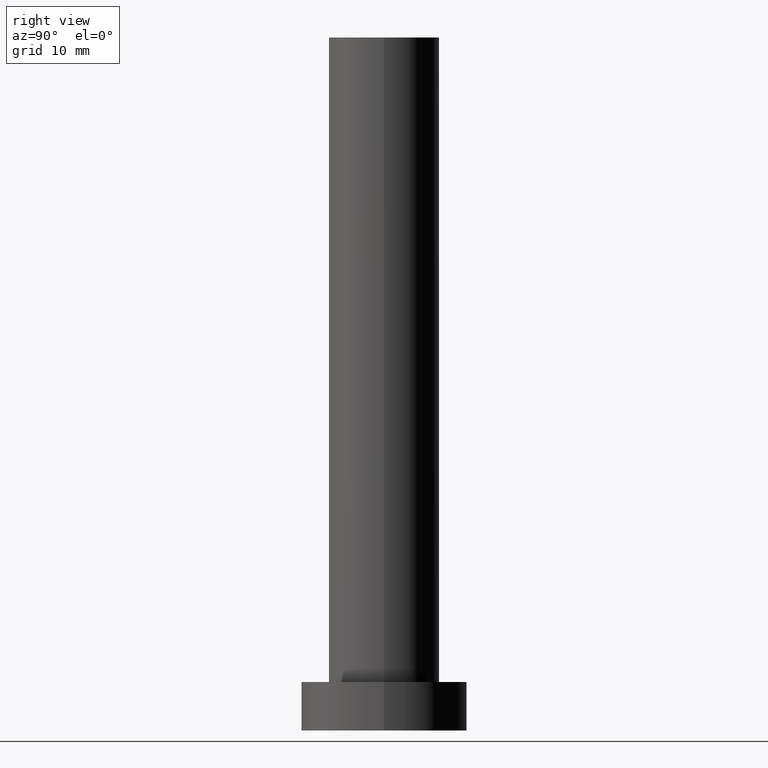
[diagram: clean part render]
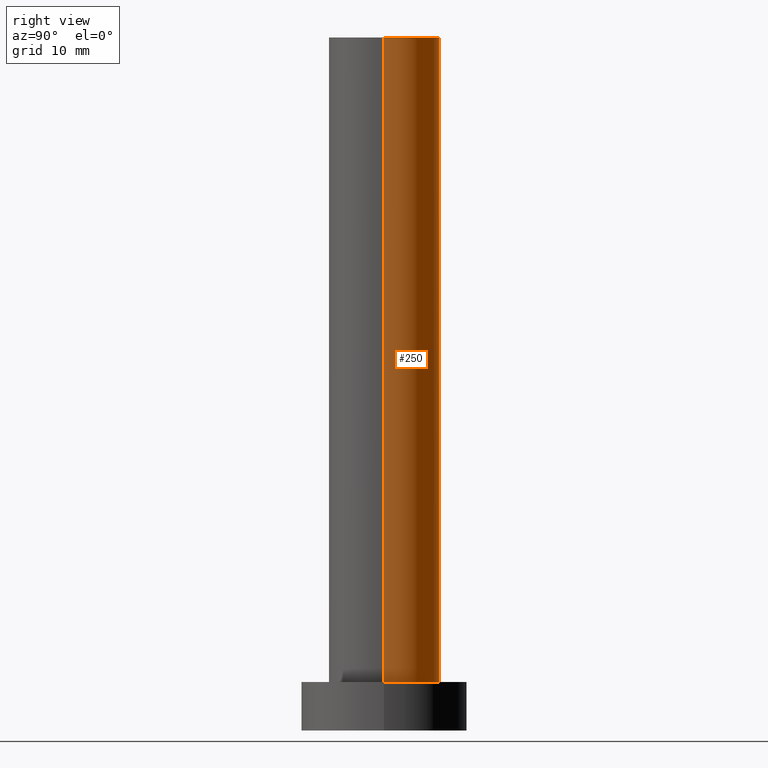
[diagram: same view with one face highlighted and labeled with its STEP entity id]
A machine part, right view. The second image highlights one B-rep face of the part: STEP entity #250.
In plain terms, the highlighted cylindrical surface (partial cylindrical patch) has radius 8 mm, axis along (-0, -0, -1).
Its self-contained STEP definition (entity closure, byte-faithful):
#9 = LINE ( 'NONE', #162, #233 ) ;
#10 = ORIENTED_EDGE ( 'NONE', *, *, #245, .T. ) ;
#19 = AXIS2_PLACEMENT_3D ( 'NONE', #122, #160, #139 ) ;
#25 = DIRECTION ( 'NONE',  ( -0.000000000000000000, -0.000000000000000000, -1.000000000000000000 ) ) ;
#26 = ORIENTED_EDGE ( 'NONE', *, *, #194, .F. ) ;
#49 = VERTEX_POINT ( 'NONE', #150 ) ;
#51 = VERTEX_POINT ( 'NONE', #238 ) ;
#61 = DIRECTION ( 'NONE',  ( 1.000000000000000000, 0.000000000000000000, 0.000000000000000000 ) ) ;
#68 = DIRECTION ( 'NONE',  ( -0.000000000000000000, -0.000000000000000000, -1.000000000000000000 ) ) ;
#81 = EDGE_CURVE ( 'NONE', #51, #244, #153, .T. ) ;
#83 = CARTESIAN_POINT ( 'NONE',  ( -8.000000000000000000, 0.000000000000000000, 7.000000000000000000 ) ) ;
#86 = CARTESIAN_POINT ( 'NONE',  ( 0.000000000000000000, 0.000000000000000000, 100.0000000000000000 ) ) ;
#91 = CYLINDRICAL_SURFACE ( 'NONE', #172, 8.000000000000000000 ) ;
#93 = VECTOR ( 'NONE', #25, 1000.000000000000000 ) ;
#98 = AXIS2_PLACEMENT_3D ( 'NONE', #119, #156, #61 ) ;
#103 = ORIENTED_EDGE ( 'NONE', *, *, #81, .T. ) ;
#107 = DIRECTION ( 'NONE',  ( -1.000000000000000000, 0.000000000000000000, 0.000000000000000000 ) ) ;
#119 = CARTESIAN_POINT ( 'NONE',  ( 0.000000000000000000, 0.000000000000000000, 7.000000000000000000 ) ) ;
#121 = CIRCLE ( 'NONE', #19, 8.000000000000000000 ) ;
#122 = CARTESIAN_POINT ( 'NONE',  ( 0.000000000000000000, 0.000000000000000000, 100.0000000000000000 ) ) ;
#132 = ORIENTED_EDGE ( 'NONE', *, *, #148, .F. ) ;
#139 = DIRECTION ( 'NONE',  ( 1.000000000000000000, 0.000000000000000000, 0.000000000000000000 ) ) ;
#148 = EDGE_CURVE ( 'NONE', #225, #244, #157, .T. ) ;
#150 = CARTESIAN_POINT ( 'NONE',  ( 8.000000000000000000, 9.797174393178823685E-16, 100.0000000000000000 ) ) ;
#153 = CIRCLE ( 'NONE', #98, 8.000000000000000000 ) ;
#156 = DIRECTION ( 'NONE',  ( 0.000000000000000000, 0.000000000000000000, 1.000000000000000000 ) ) ;
#157 = LINE ( 'NONE', #240, #93 ) ;
#160 = DIRECTION ( 'NONE',  ( 0.000000000000000000, 0.000000000000000000, 1.000000000000000000 ) ) ;
#162 = CARTESIAN_POINT ( 'NONE',  ( 8.000000000000000000, 9.797174393178823685E-16, 100.0000000000000000 ) ) ;
#163 = DIRECTION ( 'NONE',  ( -0.000000000000000000, -0.000000000000000000, -1.000000000000000000 ) ) ;
#172 = AXIS2_PLACEMENT_3D ( 'NONE', #86, #163, #107 ) ;
#194 = EDGE_CURVE ( 'NONE', #49, #225, #121, .T. ) ;
#201 = CARTESIAN_POINT ( 'NONE',  ( -8.000000000000000000, 0.000000000000000000, 100.0000000000000000 ) ) ;
#204 = EDGE_LOOP ( 'NONE', ( #26, #10, #103, #132 ) ) ;
#205 = FACE_OUTER_BOUND ( 'NONE', #204, .T. ) ;
#225 = VERTEX_POINT ( 'NONE', #201 ) ;
#233 = VECTOR ( 'NONE', #68, 1000.000000000000000 ) ;
#238 = CARTESIAN_POINT ( 'NONE',  ( 8.000000000000000000, 9.797174393178823685E-16, 7.000000000000000000 ) ) ;
#240 = CARTESIAN_POINT ( 'NONE',  ( -8.000000000000000000, 0.000000000000000000, 100.0000000000000000 ) ) ;
#244 = VERTEX_POINT ( 'NONE', #83 ) ;
#245 = EDGE_CURVE ( 'NONE', #49, #51, #9, .T. ) ;
#250 = ADVANCED_FACE ( 'NONE', ( #205 ), #91, .T. ) ;